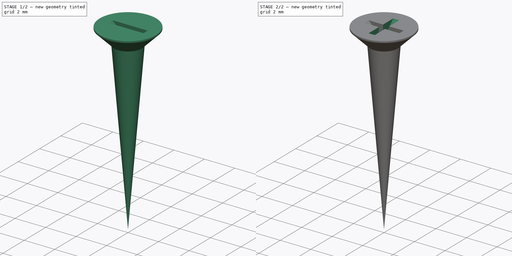
[diagram: build sequence overview — one tinted view per stage of 2, left to right]
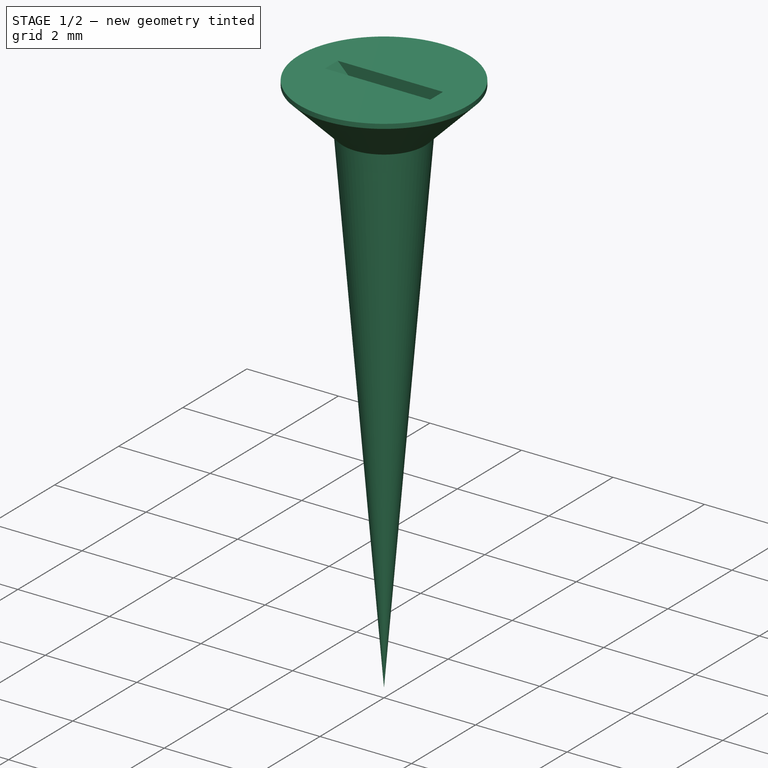
[diagram: stage 1 of 2 — iso view after this stage's code; geometry added in this stage tinted green]
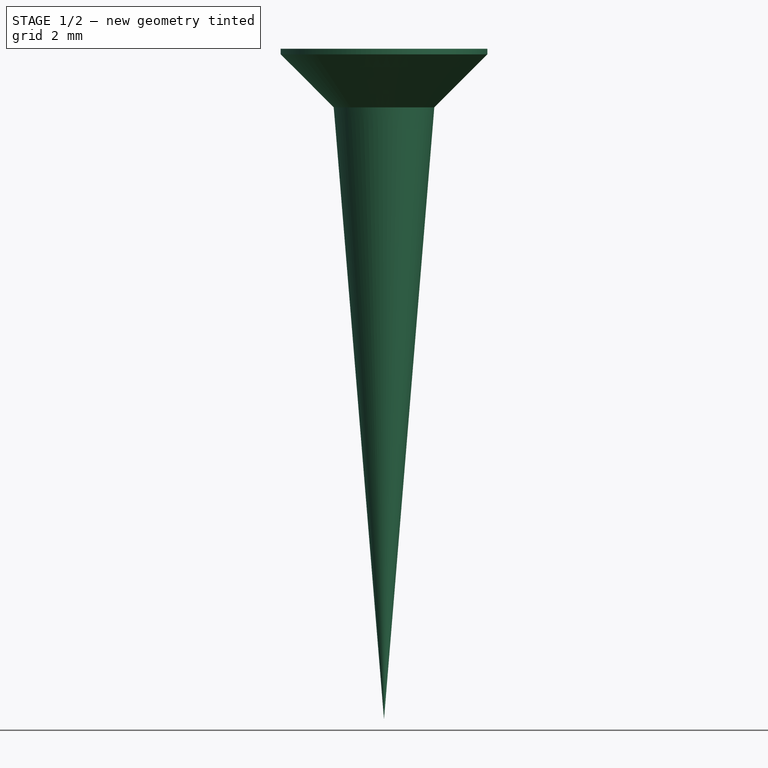
[diagram: stage 1 of 2 — front view after this stage's code; geometry added in this stage tinted green]
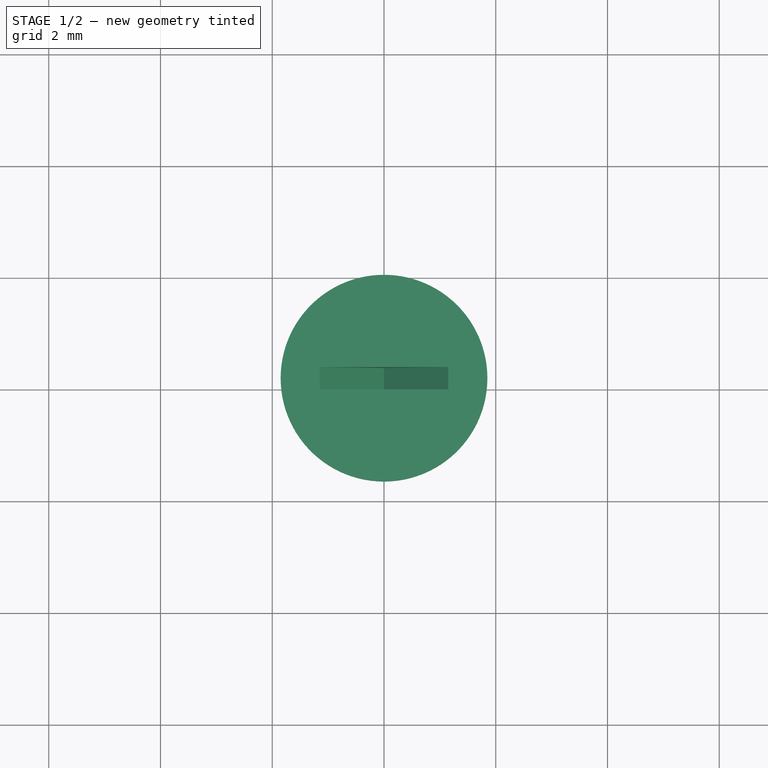
[diagram: stage 1 of 2 — top view after this stage's code; geometry added in this stage tinted green]
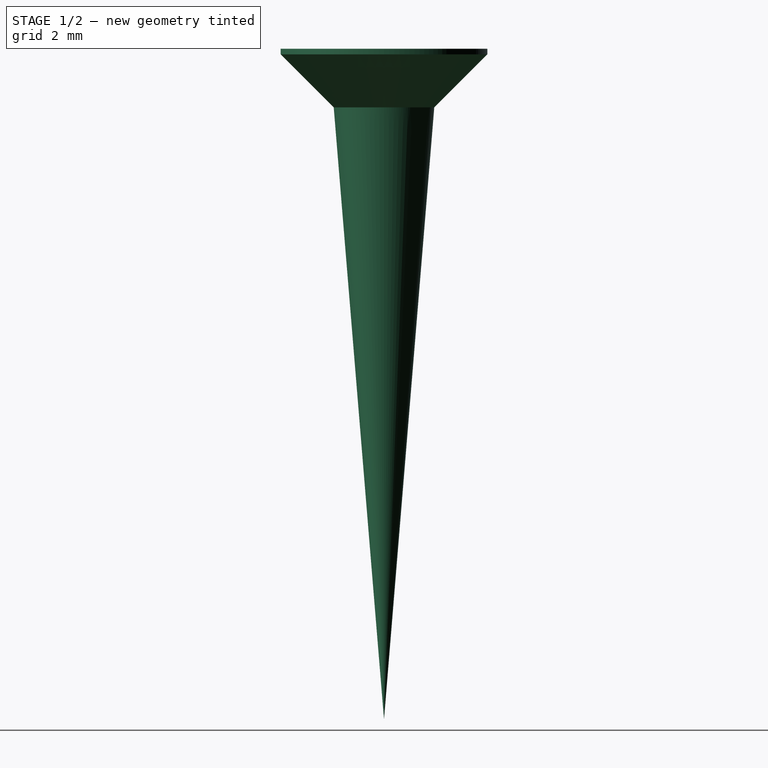
[diagram: stage 1 of 2 — right view after this stage's code; geometry added in this stage tinted green]
FCSTD DOCUMENT  (FreeCAD 0.18R4 (GitTag))
Label: SelftappingScrewM2.3x12
License: All rights reserved
LicenseURL: http://en.wikipedia.org/wiki/All_rights_reserved
objects: Sketcher::SketchObject×2, PartDesign::Revolution×1, Part::Helix×1, PartDesign::Pocket×1, PartDesign::PolarPattern×1, PartDesign::Body×1
note: 9 computed .brp shape members not serialized (recipe doc carries the construction recipe); baked Part::Feature solids carry a one-line shape summary decoded from their .brp

FEATURE [Sketcher::SketchObject] Sketch
  MapMode = 5
  Placement = pos=(0,0,0) rot=(1,0,0;1.5708rad)
  Support = -> [XZ_Plane]
  sketch-geometry (5):
    g0: LineSegment StartX=0 StartY=0 StartZ=0 EndX=0 EndY=-12 EndZ=0
    g1: LineSegment StartX=0 StartY=-12 StartZ=0 EndX=0.9 EndY=-1.05 EndZ=0
    g2: LineSegment StartX=0.9 StartY=-1.05 StartZ=0 EndX=1.85 EndY=-0.1 EndZ=0
    g3: LineSegment StartX=1.85 StartY=0 StartZ=0 EndX=0 EndY=0 EndZ=0
    g4: LineSegment StartX=1.85 StartY=-0.1 StartZ=0 EndX=1.85 EndY=0 EndZ=0
  constraints (14):
    c: Coincident(g-1,g0)
    c: Vertical(g0)
    c: Coincident(g0,g1)
    c: Coincident(g1,g2)
    c: Coincident(g3,g0)
    c: DistanceY(g0,g0) = 12
    c: Angle(g3,g2) = 0.785398
    c: DistanceX(g0,g1) = 0.9
    c: Horizontal(g3)
    c: Coincident(g4,g2)
    c: Vertical(g4)
    c: Coincident(g3,g4)
    c: DistanceX(g3) = 1.85
    c: DistanceY(g4,g4) = 0.1
FEATURE [PartDesign::Revolution] Revolution
  Angle = 360
  Axis = (-3e-16,3e-16,1)
  Base = (0,0,0)
  Placement = pos=(0,0,0) rot=(1,0,0;1.5708rad)
  Profile = -> Sketch
  ReferenceAxis = -> Z_Axis
  Reversed = true
FEATURE [Part::Helix] Helix
  Angle = 0
  AttacherType = Attacher::AttachEngine3D
  Height = 6
  LocalCoord = 0
  Pitch = 1.2
  Placement = pos=(3e-16,0,-1.5) rot=(-1,0,0;3.14159rad)
  Radius = 1.15
  Style = 1
FEATURE [Sketcher::SketchObject] Sketch001
  MapMode = 5
  Placement = pos=(0,0,0) rot=(1,0,0;1.5708rad)
  Support = -> [XZ_Plane]
  sketch-geometry (3):
    g0: LineSegment StartX=-1.15 StartY=0 StartZ=0 EndX=0 EndY=-1.15 EndZ=0
    g1: LineSegment StartX=0 StartY=-1.15 StartZ=0 EndX=1.15 EndY=0 EndZ=0
    g2: LineSegment StartX=1.15 StartY=0 StartZ=0 EndX=-1.15 EndY=0 EndZ=0
  constraints (9):
    c: PointOnObject(g0,g-1)
    c: Coincident(g0,g1)
    c: PointOnObject(g1,g-1)
    c: Coincident(g1,g2)
    c: Coincident(g2,g0)
    c: PointOnObject(g0,g-2)
    c: Equal(g1,g0)
    c: Perpendicular(g0,g1)
    c: DistanceX(g2,g2) = 2.3
FEATURE [PartDesign::Pocket] Pocket
  BaseFeature = -> Revolution
  Length = 0.4
  Length2 = 100
  Midplane = true
  Placement = pos=(0,0,0) rot=(1,0,0;1.5708rad)
  Profile = -> Sketch001
  Type = 0
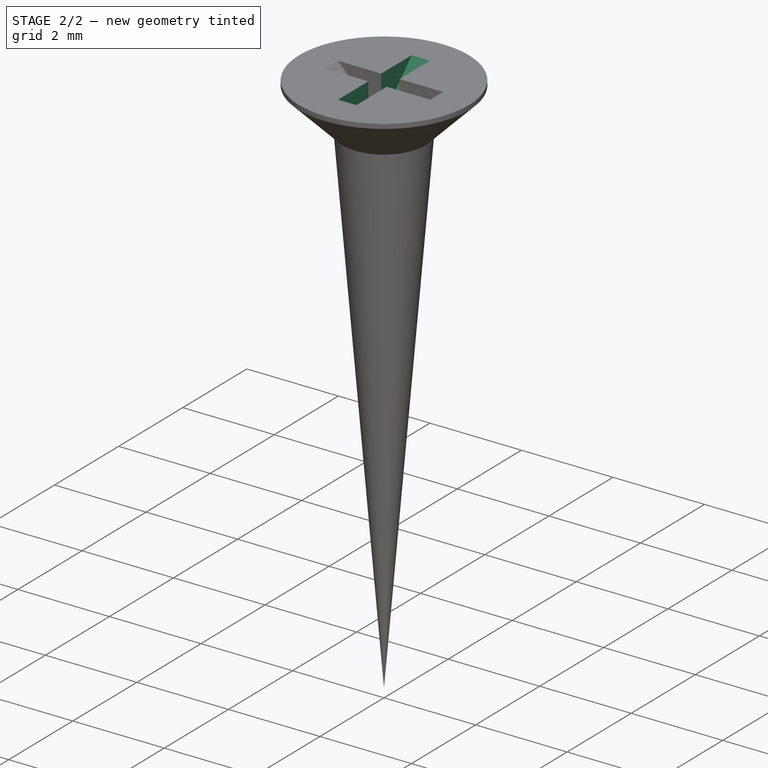
[diagram: stage 2 of 2 — iso view after this stage's code; geometry added in this stage tinted green]
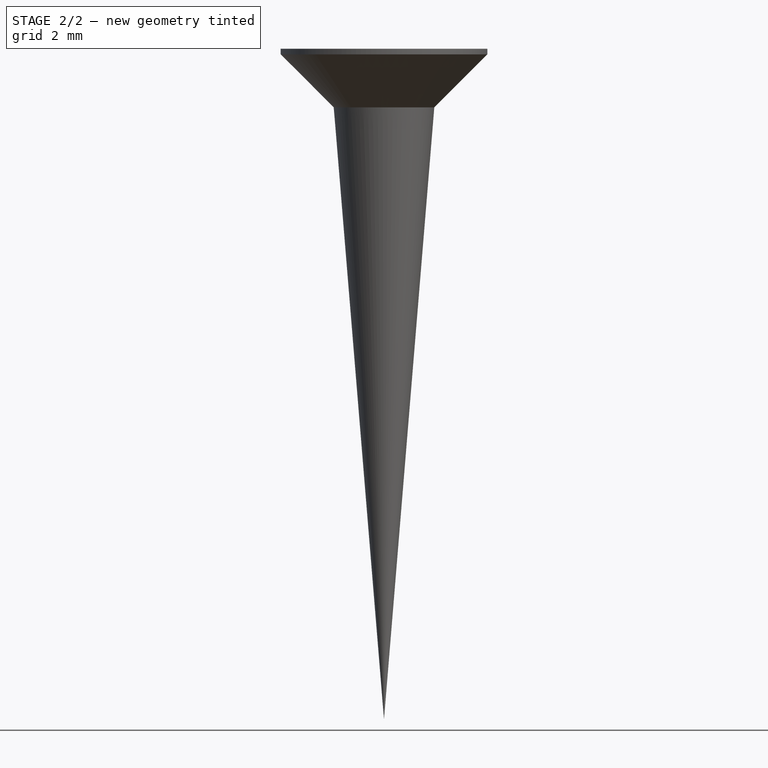
[diagram: stage 2 of 2 — front view after this stage's code; geometry added in this stage tinted green]
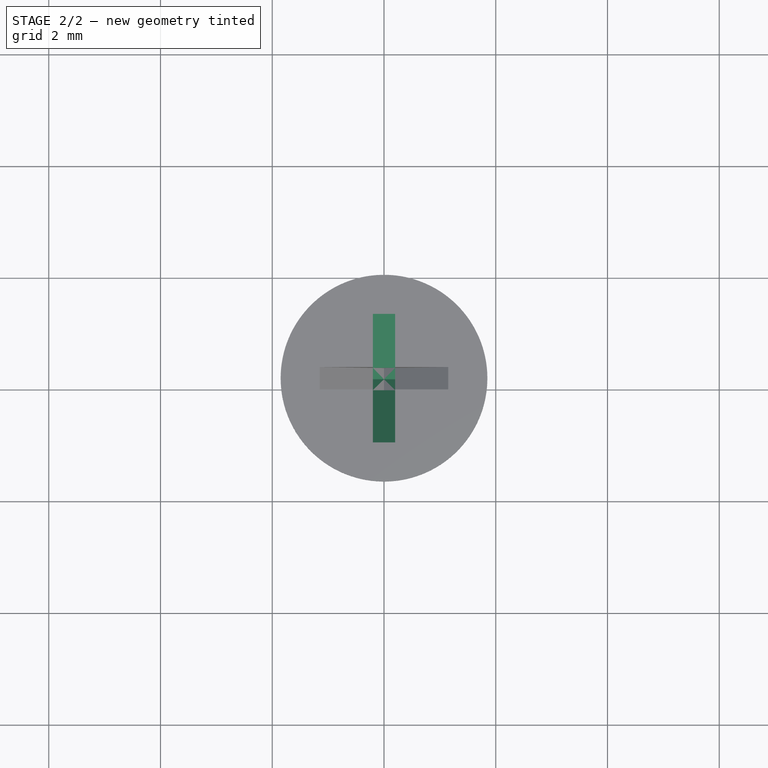
[diagram: stage 2 of 2 — top view after this stage's code; geometry added in this stage tinted green]
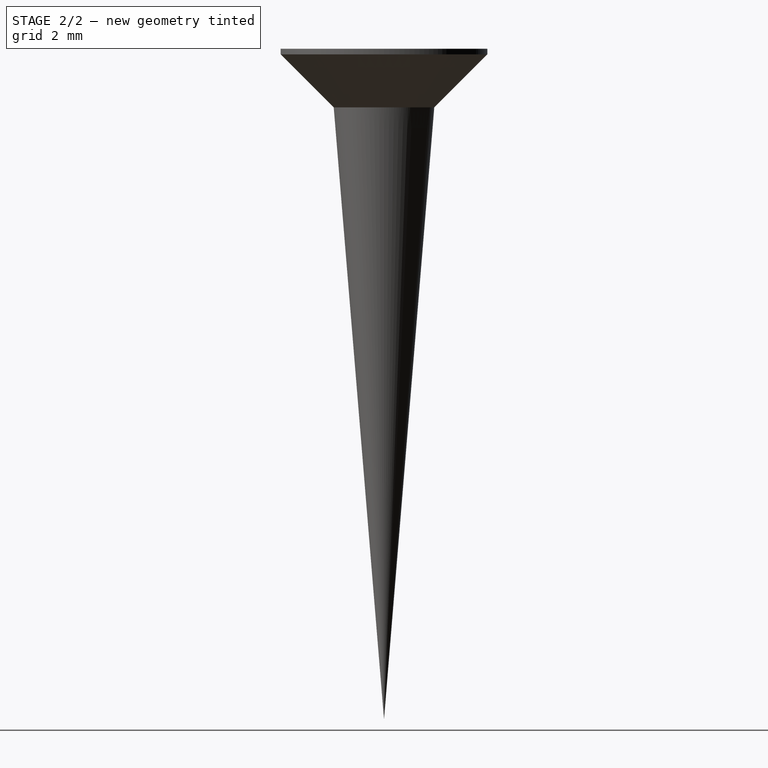
[diagram: stage 2 of 2 — right view after this stage's code; geometry added in this stage tinted green]
FEATURE [PartDesign::PolarPattern] PolarPattern
  Angle = 90
  Axis = -> Z_Axis
  BaseFeature = -> Pocket
  Occurrences = 2
  Originals = -> [Pocket]
  Placement = pos=(0,0,0) rot=(1,0,0;1.5708rad)
FEATURE [PartDesign::Body] Body
  Group = -> [Sketch,Revolution,Sketch001,Pocket,PolarPattern]
  Origin = -> Origin
  Tip = -> PolarPattern
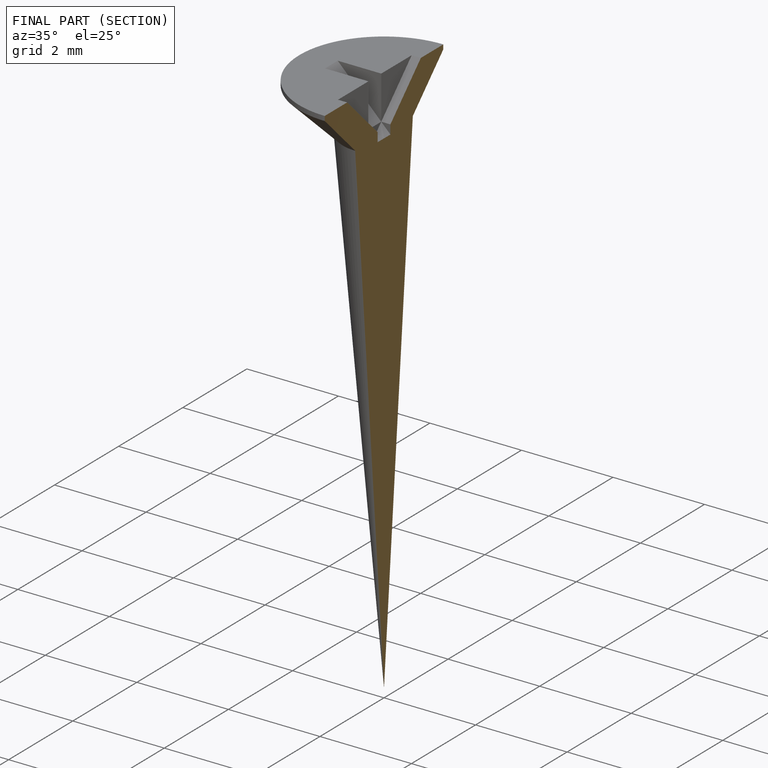
[diagram: finished part — half-section view (interior)]
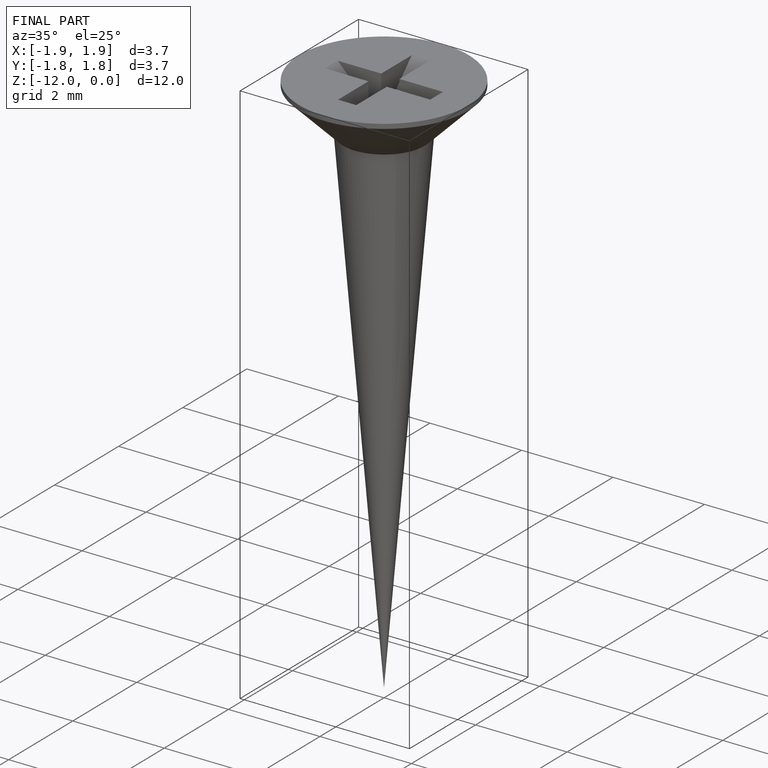
[diagram: finished part — iso view with bounding-box wireframe]
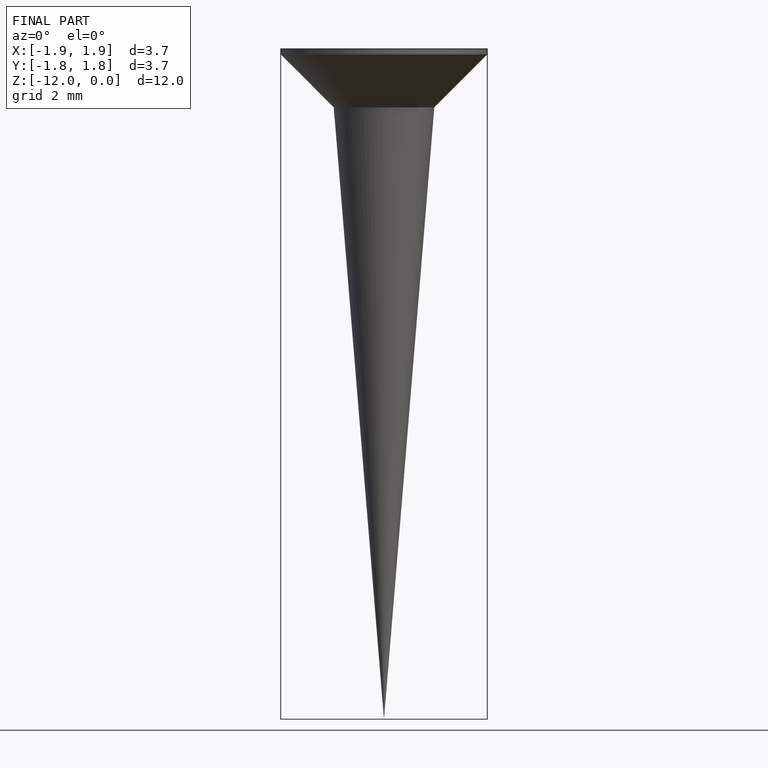
[diagram: finished part — front view with bounding-box wireframe]
